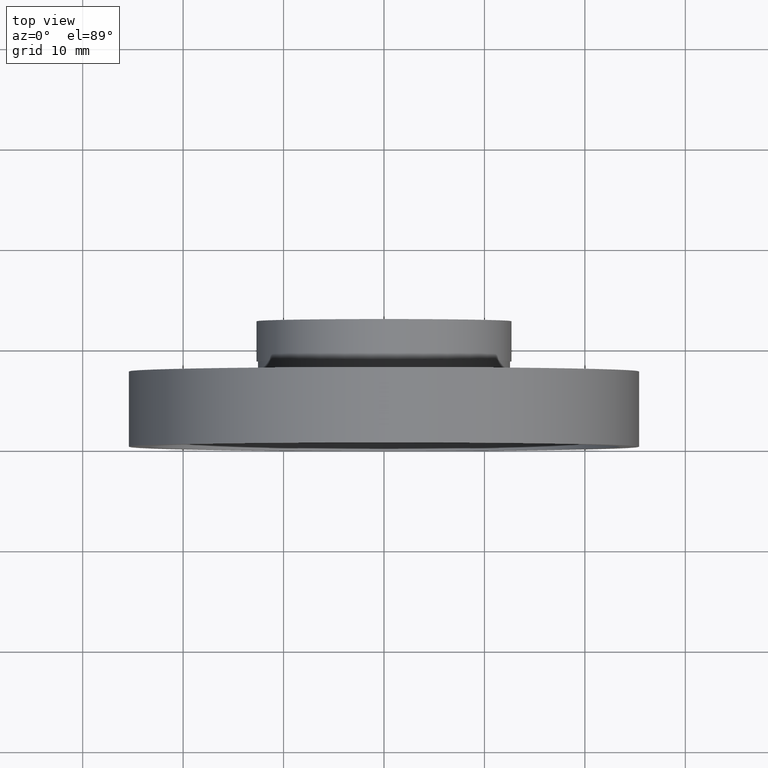
[diagram: clean part render]
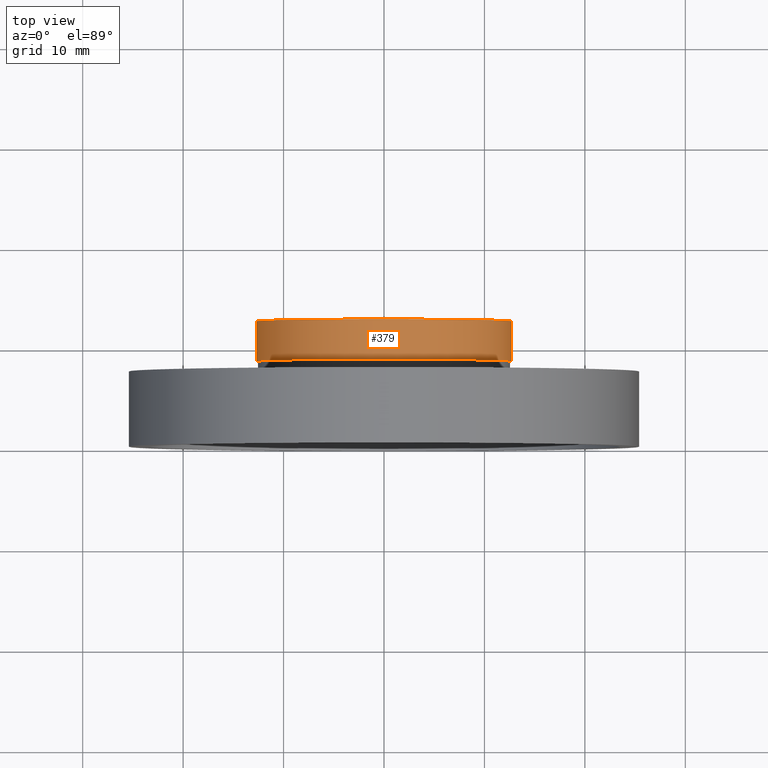
[diagram: same view with one face highlighted and labeled with its STEP entity id]
A machine part, top view. The second image highlights one B-rep face of the part: STEP entity #379.
In plain terms, the highlighted cylindrical surface (partial cylindrical patch) has radius 12.7 mm, axis along (-0, 1, -0).
Its self-contained STEP definition (entity closure, byte-faithful):
#5 = DIRECTION ( 'NONE',  ( -1.224646799147351000E-016, 1.000000000000000000, -0.0000000000000000000 ) ) ;
#9 = CIRCLE ( 'NONE', #37, 12.69999999999999800 ) ;
#15 = CYLINDRICAL_SURFACE ( 'NONE', #158, 12.69999999999999900 ) ;
#19 = EDGE_CURVE ( 'NONE', #41, #582, #275, .T. ) ;
#36 = ORIENTED_EDGE ( 'NONE', *, *, #611, .T. ) ;
#37 = AXIS2_PLACEMENT_3D ( 'NONE', #436, #524, #391 ) ;
#41 = VERTEX_POINT ( 'NONE', #225 ) ;
#50 = ORIENTED_EDGE ( 'NONE', *, *, #86, .F. ) ;
#56 = ORIENTED_EDGE ( 'NONE', *, *, #19, .T. ) ;
#86 = EDGE_CURVE ( 'NONE', #534, #582, #273, .T. ) ;
#99 = FACE_OUTER_BOUND ( 'NONE', #219, .T. ) ;
#120 = CARTESIAN_POINT ( 'NONE',  ( -12.69999999999999900, 12.49999999999999500, 0.0000000000000000000 ) ) ;
#132 = CARTESIAN_POINT ( 'NONE',  ( 12.69999999999999900, 16.88601823708207700, 1.555301434917138400E-015 ) ) ;
#133 = CARTESIAN_POINT ( 'NONE',  ( 5.371323195044474300E-016, 12.49999999999999600, 0.0000000000000000000 ) ) ;
#158 = AXIS2_PLACEMENT_3D ( 'NONE', #313, #5, #589 ) ;
#181 = DIRECTION ( 'NONE',  ( -1.000000000000000000, -1.365923996832131600E-016, 0.0000000000000000000 ) ) ;
#202 = VECTOR ( 'NONE', #370, 1000.000000000000000 ) ;
#213 = CARTESIAN_POINT ( 'NONE',  ( -12.69999999999999900, 16.88601823708207700, 0.0000000000000000000 ) ) ;
#214 = ORIENTED_EDGE ( 'NONE', *, *, #526, .F. ) ;
#219 = EDGE_LOOP ( 'NONE', ( #36, #56, #50, #214 ) ) ;
#225 = CARTESIAN_POINT ( 'NONE',  ( 12.69999999999999900, 8.500000000000000000, 1.555301434917138400E-015 ) ) ;
#240 = VERTEX_POINT ( 'NONE', #320 ) ;
#273 = CIRCLE ( 'NONE', #473, 12.69999999999999900 ) ;
#275 = LINE ( 'NONE', #132, #293 ) ;
#293 = VECTOR ( 'NONE', #437, 1000.000000000000000 ) ;
#313 = CARTESIAN_POINT ( 'NONE',  ( 0.0000000000000000000, 16.88601823708207700, 0.0000000000000000000 ) ) ;
#320 = CARTESIAN_POINT ( 'NONE',  ( -12.69999999999999600, 8.499999999999996400, 0.0000000000000000000 ) ) ;
#332 = CARTESIAN_POINT ( 'NONE',  ( 12.69999999999999900, 12.49999999999999800, 1.555301434917138400E-015 ) ) ;
#370 = DIRECTION ( 'NONE',  ( -1.224646799147351000E-016, 1.000000000000000000, -0.0000000000000000000 ) ) ;
#379 = ADVANCED_FACE ( 'NONE', ( #99 ), #15, .T. ) ;
#391 = DIRECTION ( 'NONE',  ( -1.000000000000000000, -1.365923996832131900E-016, 0.0000000000000000000 ) ) ;
#436 = CARTESIAN_POINT ( 'NONE',  ( 1.026991039163387700E-015, 8.499999999999998200, 0.0000000000000000000 ) ) ;
#437 = DIRECTION ( 'NONE',  ( -1.224646799147351000E-016, 1.000000000000000000, -0.0000000000000000000 ) ) ;
#473 = AXIS2_PLACEMENT_3D ( 'NONE', #133, #484, #181 ) ;
#484 = DIRECTION ( 'NONE',  ( -1.224646799147351000E-016, 1.000000000000000000, -0.0000000000000000000 ) ) ;
#524 = DIRECTION ( 'NONE',  ( -1.224646799147351000E-016, 1.000000000000000000, -0.0000000000000000000 ) ) ;
#526 = EDGE_CURVE ( 'NONE', #240, #534, #586, .T. ) ;
#534 = VERTEX_POINT ( 'NONE', #120 ) ;
#582 = VERTEX_POINT ( 'NONE', #332 ) ;
#586 = LINE ( 'NONE', #213, #202 ) ;
#589 = DIRECTION ( 'NONE',  ( -1.000000000000000000, 0.0000000000000000000, 0.0000000000000000000 ) ) ;
#611 = EDGE_CURVE ( 'NONE', #240, #41, #9, .T. ) ;